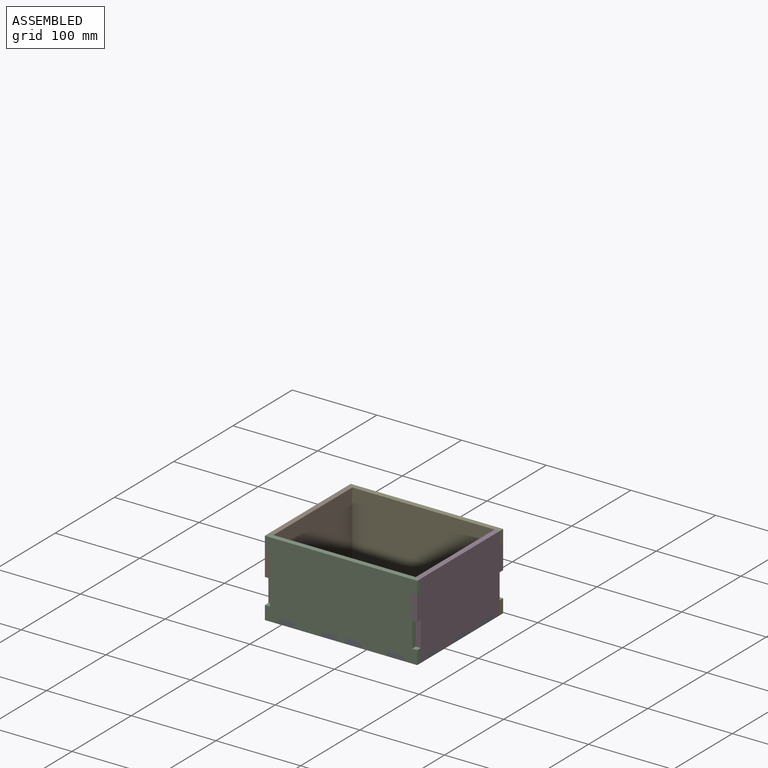
[diagram: assembled view]
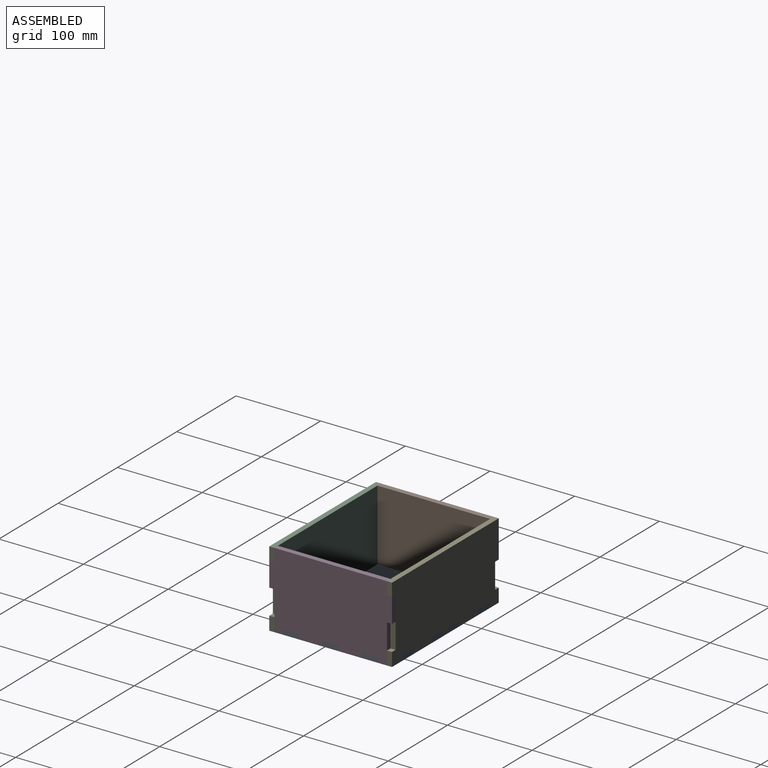
[diagram: assembled view, second angle]
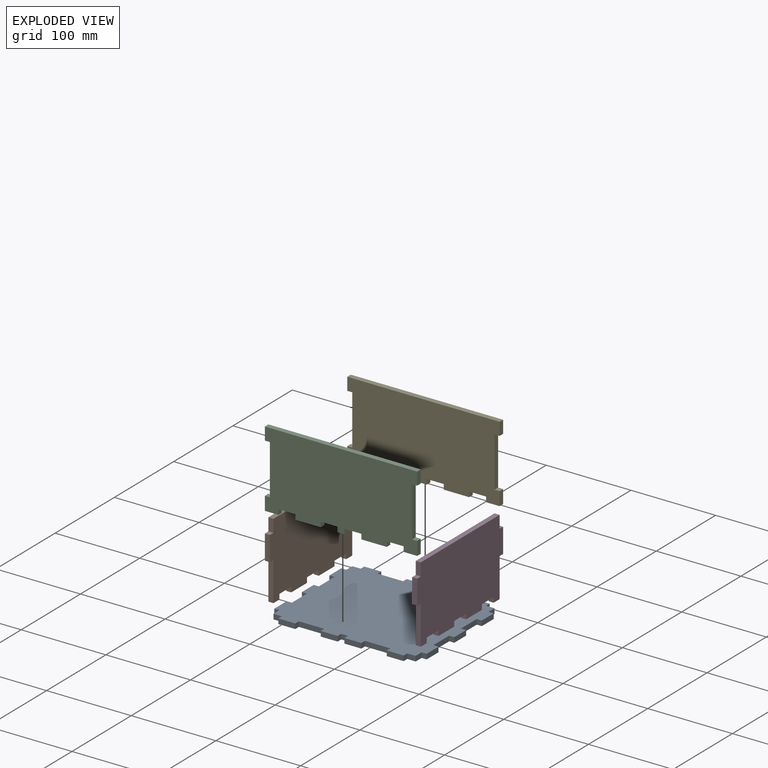
[diagram: exploded view]
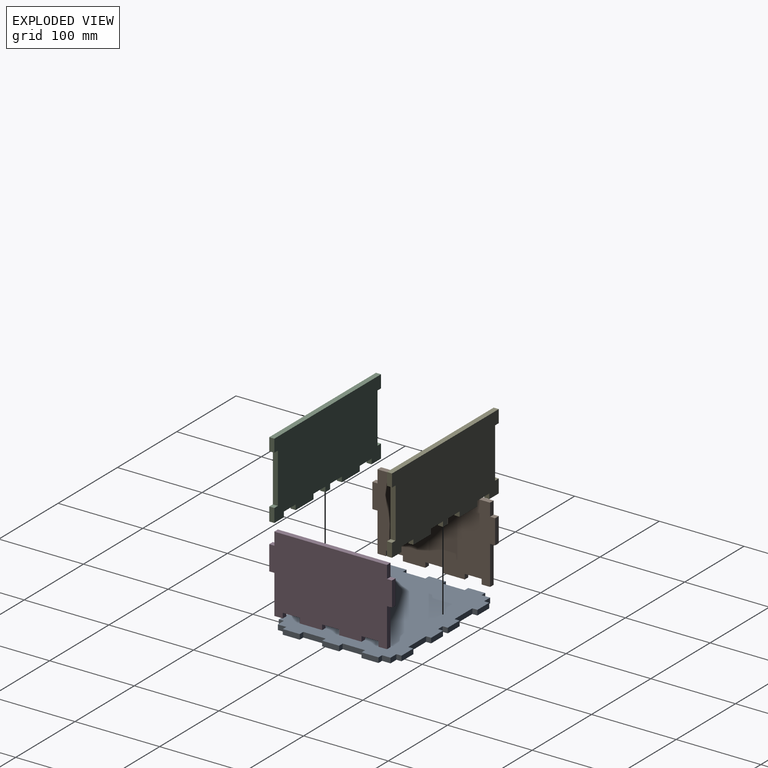
[diagram: exploded view, second angle]
ASSEMBLY  parts=5 mates=4
PART A: 62 faces, bbox 180x145x6 mm
  f0: plane 6x6mm, normal (-1,0,0), area 36mm2, adj f1,f59,f60,f61
  f1: plane 30x6mm, normal (0,1,0), area 180mm2, adj f0,f2,f60,f61
  f2: plane 6x6mm, normal (1,0,0), area 36mm2, adj f1,f3,f60,f61
  f3: plane 20x6mm, normal (0,1,0), area 120mm2, adj f2,f4,f60,f61
  f4: plane 6x6mm, normal (-1,0,0), area 36mm2, adj f3,f5,f60,f61
  f5: plane 8x6mm, normal (0,1,0), area 48mm2, adj f4,f6,f60,f61
  f6: plane 6x6mm, normal (1,0,0), area 36mm2, adj f5,f7,f60,f61
  f7: plane 20x6mm, normal (0,1,0), area 120mm2, adj f6,f8,f60,f61
  f8: plane 6x6mm, normal (-1,0,0), area 36mm2, adj f7,f9,f60,f61
  f9: plane 30x6mm, normal (0,1,0), area 180mm2, adj f8,f10,f60,f61
  f10: plane 6x6mm, normal (1,0,0), area 36mm2, adj f9,f11,f60,f61
  f11: plane 20x6mm, normal (0,1,0), area 120mm2, adj f10,f12,f60,f61
  f12: plane 6x6mm, normal (-1,0,0), area 36mm2, adj f11,f13,f60,f61
  f13: plane 10x6mm, normal (0,1,0), area 60mm2, adj f12,f14,f60,f61
  f14: plane 10x6mm, normal (-1,0,0), area 60mm2, adj f13,f15,f60,f61
  f15: plane 6x6mm, normal (0,1,0), area 36mm2, adj f14,f16,f60,f61
  f16: plane 20x6mm, normal (-1,0,0), area 120mm2, adj f15,f17,f60,f61
  f17: plane 6x6mm, normal (0,-1,0), area 36mm2, adj f16,f18,f60,f61
  f18: plane 26.5x6mm, normal (-1,0,0), area 159mm2, adj f17,f19,f60,f61
  f19: plane 6x6mm, normal (0,1,0), area 36mm2, adj f18,f20,f60,f61
  f20: plane 20x6mm, normal (-1,0,0), area 120mm2, adj f19,f21,f60,f61
  f21: plane 6x6mm, normal (0,-1,0), area 36mm2, adj f20,f22,f60,f61
  f22: plane 26.5x6mm, normal (-1,0,0), area 159mm2, adj f21,f23,f60,f61
  f23: plane 6x6mm, normal (0,1,0), area 36mm2, adj f22,f24,f60,f61
  f24: plane 20x6mm, normal (-1,0,0), area 120mm2, adj f23,f25,f60,f61
  f25: plane 6x6mm, normal (0,-1,0), area 36mm2, adj f24,f26,f60,f61
  f26: plane 10x6mm, normal (-1,0,0), area 60mm2, adj f25,f27,f60,f61
  f27: plane 10x6mm, normal (0,-1,0), area 60mm2, adj f26,f28,f60,f61
  f28: plane 6x6mm, normal (-1,0,0), area 36mm2, adj f27,f29,f60,f61
  f29: plane 20x6mm, normal (0,-1,0), area 120mm2, adj f28,f30,f60,f61
  f30: plane 6x6mm, normal (1,0,0), area 36mm2, adj f29,f31,f60,f61
  f31: plane 30x6mm, normal (0,-1,0), area 180mm2, adj f30,f32,f60,f61
  f32: plane 6x6mm, normal (-1,0,0), area 36mm2, adj f31,f33,f60,f61
  f33: plane 20x6mm, normal (0,-1,0), area 120mm2, adj f32,f34,f60,f61
  f34: plane 6x6mm, normal (1,0,0), area 36mm2, adj f33,f35,f60,f61
  f35: plane 8x6mm, normal (0,-1,0), area 48mm2, adj f34,f36,f60,f61
  f36: plane 6x6mm, normal (-1,0,0), area 36mm2, adj f35,f37,f60,f61
  f37: plane 20x6mm, normal (0,-1,0), area 120mm2, adj f36,f38,f60,f61
  f38: plane 6x6mm, normal (1,0,0), area 36mm2, adj f37,f39,f60,f61
  f39: plane 30x6mm, normal (0,-1,0), area 180mm2, adj f38,f40,f60,f61
  f40: plane 6x6mm, normal (-1,0,0), area 36mm2, adj f39,f41,f60,f61
  f41: plane 20x6mm, normal (0,-1,0), area 120mm2, adj f40,f42,f60,f61
  f42: plane 6x6mm, normal (1,0,0), area 36mm2, adj f41,f43,f60,f61
  f43: plane 10x6mm, normal (0,-1,0), area 60mm2, adj f42,f44,f60,f61
  f44: plane 10x6mm, normal (1,0,0), area 60mm2, adj f43,f45,f60,f61
  f45: plane 6x6mm, normal (0,-1,0), area 36mm2, adj f44,f46,f60,f61
  f46: plane 20x6mm, normal (1,0,0), area 120mm2, adj f45,f47,f60,f61
  f47: plane 6x6mm, normal (0,1,0), area 36mm2, adj f46,f48,f60,f61
  f48: plane 26.5x6mm, normal (1,0,0), area 159mm2, adj f47,f49,f60,f61
  f49: plane 6x6mm, normal (0,-1,0), area 36mm2, adj f48,f50,f60,f61
  f50: plane 20x6mm, normal (1,0,0), area 120mm2, adj f49,f51,f60,f61
  f51: plane 6x6mm, normal (0,1,0), area 36mm2, adj f50,f52,f60,f61
  f52: plane 26.5x6mm, normal (1,0,0), area 159mm2, adj f51,f53,f60,f61
  f53: plane 6x6mm, normal (0,-1,0), area 36mm2, adj f52,f54,f60,f61
  f54: plane 20x6mm, normal (1,0,0), area 120mm2, adj f53,f55,f60,f61
  f55: plane 6x6mm, normal (0,1,0), area 36mm2, adj f54,f56,f60,f61
  f56: plane 10x6mm, normal (1,0,0), area 60mm2, adj f55,f57,f60,f61
  f57: plane 10x6mm, normal (0,1,0), area 60mm2, adj f56,f58,f60,f61
  f58: plane 6x6mm, normal (1,0,0), area 36mm2, adj f57,f59,f60,f61
  f59: plane 20x6mm, normal (0,1,0), area 120mm2, adj f0,f58,f60,f61
  f60: plane 180x145mm, normal (0,0,1), area 24024mm2, adj f0,f1,f2,f3,f4,f5,f6,f7
  f61: plane 180x145mm, normal (0,0,-1), area 24024mm2, adj f0,f1,f2,f3,f4,f5,f6,f7
PART B: 26 faces, bbox 90x145x6 mm
  f0: plane 6x6mm, normal (1,0,0), area 36mm2, adj f1,f23,f24,f25
  f1: plane 46x6mm, normal (0,1,0), area 276mm2, adj f0,f2,f24,f25
  f2: plane 10x6mm, normal (1,0,0), area 60mm2, adj f1,f3,f24,f25
  f3: plane 6x6mm, normal (0,-1,0), area 36mm2, adj f2,f4,f24,f25
  f4: plane 20x6mm, normal (1,0,0), area 120mm2, adj f3,f5,f24,f25
  f5: plane 6x6mm, normal (0,1,0), area 36mm2, adj f4,f6,f24,f25
  f6: plane 26.5x6mm, normal (1,0,0), area 159mm2, adj f5,f7,f24,f25
  f7: plane 6x6mm, normal (0,-1,0), area 36mm2, adj f6,f8,f24,f25
  f8: plane 20x6mm, normal (1,0,0), area 120mm2, adj f7,f9,f24,f25
  f9: plane 6x6mm, normal (0,1,0), area 36mm2, adj f8,f10,f24,f25
  f10: plane 26.5x6mm, normal (1,0,0), area 159mm2, adj f9,f11,f24,f25
  f11: plane 6x6mm, normal (0,-1,0), area 36mm2, adj f10,f12,f24,f25
  f12: plane 20x6mm, normal (1,0,0), area 120mm2, adj f11,f13,f24,f25
  f13: plane 6x6mm, normal (0,1,0), area 36mm2, adj f12,f14,f24,f25
  f14: plane 10x6mm, normal (1,0,0), area 60mm2, adj f13,f15,f24,f25
  f15: plane 46x6mm, normal (0,-1,0), area 276mm2, adj f14,f16,f24,f25
  f16: plane 6x6mm, normal (1,0,0), area 36mm2, adj f15,f17,f24,f25
  f17: plane 29x6mm, normal (0,-1,0), area 174mm2, adj f16,f18,f24,f25
  f18: plane 6x6mm, normal (-1,0,0), area 36mm2, adj f17,f19,f24,f25
  f19: plane 15x6mm, normal (0,-1,0), area 90mm2, adj f18,f20,f24,f25
  f20: plane 133x6mm, normal (-1,0,0), area 798mm2, adj f19,f21,f24,f25
  f21: plane 15x6mm, normal (0,1,0), area 90mm2, adj f20,f22,f24,f25
  f22: plane 6x6mm, normal (-1,0,0), area 36mm2, adj f21,f23,f24,f25
  f23: plane 29x6mm, normal (0,1,0), area 174mm2, adj f0,f22,f24,f25
  f24: plane 145x90mm, normal (0,0,1), area 11958mm2, adj f0,f1,f2,f3,f4,f5,f6,f7
  f25: plane 145x90mm, normal (0,0,-1), area 11958mm2, adj f0,f1,f2,f3,f4,f5,f6,f7
PART C: 30 faces, bbox 180x90x6 mm
  f0: plane 6x6mm, normal (0,-1,0), area 36mm2, adj f1,f27,f28,f29
  f1: plane 59x6mm, normal (1,0,0), area 354mm2, adj f0,f2,f28,f29
  f2: plane 6x6mm, normal (0,1,0), area 36mm2, adj f1,f3,f28,f29
  f3: plane 15x6mm, normal (1,0,0), area 90mm2, adj f2,f4,f28,f29
  f4: plane 180x6mm, normal (0,-1,0), area 1080mm2, adj f3,f5,f28,f29
  f5: plane 15x6mm, normal (-1,0,0), area 90mm2, adj f4,f6,f28,f29
  f6: plane 6x6mm, normal (0,1,0), area 36mm2, adj f5,f7,f28,f29
  f7: plane 59x6mm, normal (-1,0,0), area 354mm2, adj f6,f8,f28,f29
  f8: plane 6x6mm, normal (0,-1,0), area 36mm2, adj f7,f9,f28,f29
  f9: plane 16x6mm, normal (-1,0,0), area 96mm2, adj f8,f10,f28,f29
  f10: plane 16x6mm, normal (0,1,0), area 96mm2, adj f9,f11,f28,f29
  f11: plane 6x6mm, normal (1,0,0), area 36mm2, adj f10,f12,f28,f29
  f12: plane 20x6mm, normal (0,1,0), area 120mm2, adj f11,f13,f28,f29
  f13: plane 6x6mm, normal (-1,0,0), area 36mm2, adj f12,f14,f28,f29
  f14: plane 30x6mm, normal (0,1,0), area 180mm2, adj f13,f15,f28,f29
  f15: plane 6x6mm, normal (1,0,0), area 36mm2, adj f14,f16,f28,f29
  f16: plane 20x6mm, normal (0,1,0), area 120mm2, adj f15,f17,f28,f29
  f17: plane 6x6mm, normal (-1,0,0), area 36mm2, adj f16,f18,f28,f29
  f18: plane 8x6mm, normal (0,1,0), area 48mm2, adj f17,f19,f28,f29
  f19: plane 6x6mm, normal (1,0,0), area 36mm2, adj f18,f20,f28,f29
  f20: plane 20x6mm, normal (0,1,0), area 120mm2, adj f19,f21,f28,f29
  f21: plane 6x6mm, normal (-1,0,0), area 36mm2, adj f20,f22,f28,f29
  f22: plane 30x6mm, normal (0,1,0), area 180mm2, adj f21,f23,f28,f29
  f23: plane 6x6mm, normal (1,0,0), area 36mm2, adj f22,f24,f28,f29
  f24: plane 20x6mm, normal (0,1,0), area 120mm2, adj f23,f25,f28,f29
  f25: plane 6x6mm, normal (-1,0,0), area 36mm2, adj f24,f26,f28,f29
  f26: plane 16x6mm, normal (0,1,0), area 96mm2, adj f25,f27,f28,f29
  f27: plane 16x6mm, normal (1,0,0), area 96mm2, adj f0,f26,f28,f29
  f28: plane 180x90mm, normal (0,0,1), area 15012mm2, adj f0,f1,f2,f3,f4,f5,f6,f7
  f29: plane 180x90mm, normal (0,0,-1), area 15012mm2, adj f0,f1,f2,f3,f4,f5,f6,f7
PART D: 26 faces, bbox 90x145x6 mm
  f0: plane 6x6mm, normal (-1,0,0), area 36mm2, adj f1,f23,f24,f25
  f1: plane 46x6mm, normal (0,1,0), area 276mm2, adj f0,f2,f24,f25
  f2: plane 10x6mm, normal (-1,0,0), area 60mm2, adj f1,f3,f24,f25
  f3: plane 6x6mm, normal (0,-1,0), area 36mm2, adj f2,f4,f24,f25
  f4: plane 20x6mm, normal (-1,0,0), area 120mm2, adj f3,f5,f24,f25
  f5: plane 6x6mm, normal (0,1,0), area 36mm2, adj f4,f6,f24,f25
  f6: plane 26.5x6mm, normal (-1,0,0), area 159mm2, adj f5,f7,f24,f25
  f7: plane 6x6mm, normal (0,-1,0), area 36mm2, adj f6,f8,f24,f25
  f8: plane 20x6mm, normal (-1,0,0), area 120mm2, adj f7,f9,f24,f25
  f9: plane 6x6mm, normal (0,1,0), area 36mm2, adj f8,f10,f24,f25
  f10: plane 26.5x6mm, normal (-1,0,0), area 159mm2, adj f9,f11,f24,f25
  f11: plane 6x6mm, normal (0,-1,0), area 36mm2, adj f10,f12,f24,f25
  f12: plane 20x6mm, normal (-1,0,0), area 120mm2, adj f11,f13,f24,f25
  f13: plane 6x6mm, normal (0,1,0), area 36mm2, adj f12,f14,f24,f25
  f14: plane 10x6mm, normal (-1,0,0), area 60mm2, adj f13,f15,f24,f25
  f15: plane 46x6mm, normal (0,-1,0), area 276mm2, adj f14,f16,f24,f25
  f16: plane 6x6mm, normal (-1,0,0), area 36mm2, adj f15,f17,f24,f25
  f17: plane 29x6mm, normal (0,-1,0), area 174mm2, adj f16,f18,f24,f25
  f18: plane 6x6mm, normal (1,0,0), area 36mm2, adj f17,f19,f24,f25
  f19: plane 15x6mm, normal (0,-1,0), area 90mm2, adj f18,f20,f24,f25
  f20: plane 133x6mm, normal (1,0,0), area 798mm2, adj f19,f21,f24,f25
  f21: plane 15x6mm, normal (0,1,0), area 90mm2, adj f20,f22,f24,f25
  f22: plane 6x6mm, normal (1,0,0), area 36mm2, adj f21,f23,f24,f25
  f23: plane 29x6mm, normal (0,1,0), area 174mm2, adj f0,f22,f24,f25
  f24: plane 145x90mm, normal (0,0,1), area 11958mm2, adj f0,f1,f2,f3,f4,f5,f6,f7
  f25: plane 145x90mm, normal (0,0,-1), area 11958mm2, adj f0,f1,f2,f3,f4,f5,f6,f7
PART E: 30 faces, bbox 180x90x6 mm
  f0: plane 6x6mm, normal (0,1,0), area 36mm2, adj f1,f27,f28,f29
  f1: plane 59x6mm, normal (1,0,0), area 354mm2, adj f0,f2,f28,f29
  f2: plane 6x6mm, normal (0,-1,0), area 36mm2, adj f1,f3,f28,f29
  f3: plane 15x6mm, normal (1,0,0), area 90mm2, adj f2,f4,f28,f29
  f4: plane 180x6mm, normal (0,1,0), area 1080mm2, adj f3,f5,f28,f29
  f5: plane 15x6mm, normal (-1,0,0), area 90mm2, adj f4,f6,f28,f29
  f6: plane 6x6mm, normal (0,-1,0), area 36mm2, adj f5,f7,f28,f29
  f7: plane 59x6mm, normal (-1,0,0), area 354mm2, adj f6,f8,f28,f29
  f8: plane 6x6mm, normal (0,1,0), area 36mm2, adj f7,f9,f28,f29
  f9: plane 16x6mm, normal (-1,0,0), area 96mm2, adj f8,f10,f28,f29
  f10: plane 16x6mm, normal (0,-1,0), area 96mm2, adj f9,f11,f28,f29
  f11: plane 6x6mm, normal (1,0,0), area 36mm2, adj f10,f12,f28,f29
  f12: plane 20x6mm, normal (0,-1,0), area 120mm2, adj f11,f13,f28,f29
  f13: plane 6x6mm, normal (-1,0,0), area 36mm2, adj f12,f14,f28,f29
  f14: plane 30x6mm, normal (0,-1,0), area 180mm2, adj f13,f15,f28,f29
  f15: plane 6x6mm, normal (1,0,0), area 36mm2, adj f14,f16,f28,f29
  f16: plane 20x6mm, normal (0,-1,0), area 120mm2, adj f15,f17,f28,f29
  f17: plane 6x6mm, normal (-1,0,0), area 36mm2, adj f16,f18,f28,f29
  f18: plane 8x6mm, normal (0,-1,0), area 48mm2, adj f17,f19,f28,f29
  f19: plane 6x6mm, normal (1,0,0), area 36mm2, adj f18,f20,f28,f29
  f20: plane 20x6mm, normal (0,-1,0), area 120mm2, adj f19,f21,f28,f29
  f21: plane 6x6mm, normal (-1,0,0), area 36mm2, adj f20,f22,f28,f29
  f22: plane 30x6mm, normal (0,-1,0), area 180mm2, adj f21,f23,f28,f29
  f23: plane 6x6mm, normal (1,0,0), area 36mm2, adj f22,f24,f28,f29
  f24: plane 20x6mm, normal (0,-1,0), area 120mm2, adj f23,f25,f28,f29
  f25: plane 6x6mm, normal (-1,0,0), area 36mm2, adj f24,f26,f28,f29
  f26: plane 16x6mm, normal (0,-1,0), area 96mm2, adj f25,f27,f28,f29
  f27: plane 16x6mm, normal (1,0,0), area 96mm2, adj f0,f26,f28,f29
  f28: plane 180x90mm, normal (0,0,1), area 15012mm2, adj f0,f1,f2,f3,f4,f5,f6,f7
  f29: plane 180x90mm, normal (0,0,-1), area 15012mm2, adj f0,f1,f2,f3,f4,f5,f6,f7
PLACE A t=(-239.57,-102.72,-39.4)mm
PLACE B rot(axis=(0,1,0),90deg) t=(-329.57,-102.72,-185.45)mm
PLACE C rot(axis=(-1,0,0),90deg) t=(-239.57,-175.22,-141.36)mm
PLACE D rot(axis=(0,-1,0),90deg) t=(-149.57,-102.72,-185.45)mm
PLACE E rot(axis=(1,0,0),90deg) t=(-239.57,-30.22,-141.36)mm
MATE fastened A.f61 <-> B.f6  axis (0,0,-1) through (-329.57,-66.22,-39.4)mm
MATE fastened E.f14 <-> A.f61  axis (0,0,-1) through (-293.57,-36.22,-39.4)mm
MATE fastened D.f10 <-> A.f61  axis (0,0,-1) through (-155.57,-112.72,-39.4)mm
MATE fastened C.f14 <-> A.f61  axis (0,0,-1) through (-293.57,-169.22,-39.4)mm
